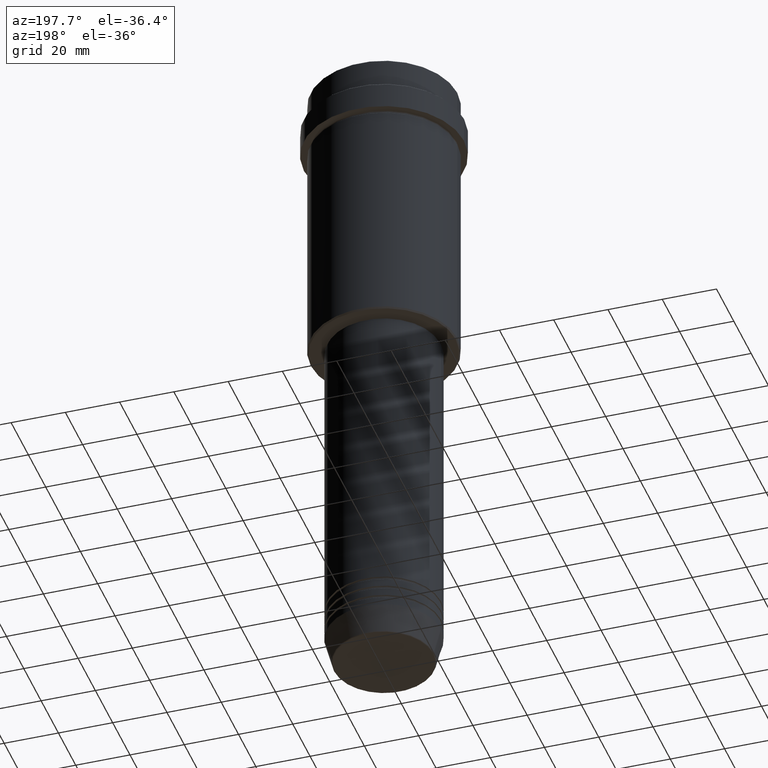
[diagram: clean part render]
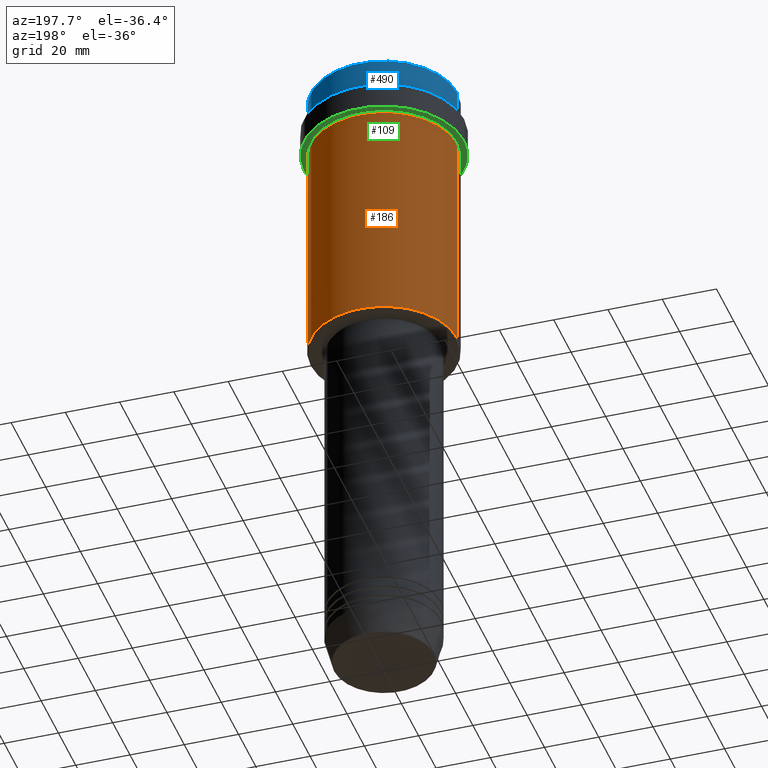
[diagram: same view with three faces highlighted in distinct colors, each labeled with its STEP entity id]
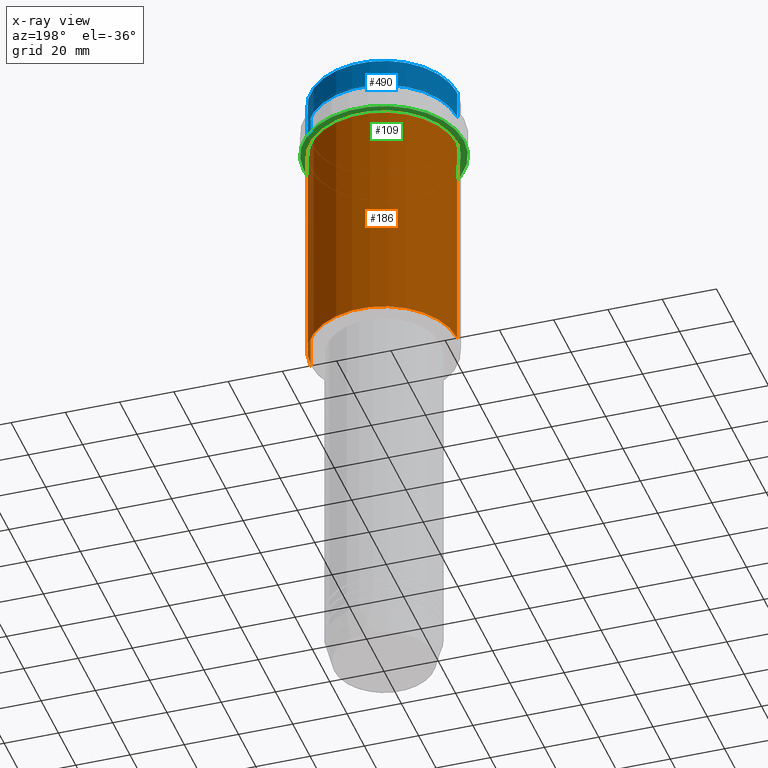
[diagram: x-ray of the same camera — body ghosted, the three highlighted faces saturated]
A machine part, auxiliary view with three faces highlighted in distinct colors.
The next image is the same camera in x-ray (body ghosted, the three faces saturated) — at least one of them is partly hidden behind the body in this view.
Their STEP definitions:

[orange] entity #186 — the highlighted cylindrical surface (partial cylindrical patch) has radius 27 mm, axis along (-0, -0, 1).
#186 = ADVANCED_FACE ( 'NONE', ( #1053 ), #939, .T. ) ;
#203 = CARTESIAN_POINT ( 'NONE',  ( 27.00000000000000355, 0.000000000000000000, -107.5000000000000000 ) ) ;
#244 = ORIENTED_EDGE ( 'NONE', *, *, #1113, .F. ) ;
#253 = DIRECTION ( 'NONE',  ( -0.000000000000000000, -0.000000000000000000, 1.000000000000000000 ) ) ;
#278 = DIRECTION ( 'NONE',  ( 1.000000000000000000, 0.000000000000000000, 0.000000000000000000 ) ) ;
#310 = ORIENTED_EDGE ( 'NONE', *, *, #399, .T. ) ;
#335 = VECTOR ( 'NONE', #567, 1000.000000000000000 ) ;
#364 = CARTESIAN_POINT ( 'NONE',  ( 0.000000000000000000, 0.000000000000000000, -23.00000000000001421 ) ) ;
#374 = AXIS2_PLACEMENT_3D ( 'NONE', #1260, #1145, #278 ) ;
#399 = EDGE_CURVE ( 'NONE', #791, #632, #1112, .T. ) ;
#412 = DIRECTION ( 'NONE',  ( -0.000000000000000000, -0.000000000000000000, 1.000000000000000000 ) ) ;
#429 = AXIS2_PLACEMENT_3D ( 'NONE', #364, #253, #789 ) ;
#449 = DIRECTION ( 'NONE',  ( -0.000000000000000000, -0.000000000000000000, 1.000000000000000000 ) ) ;
#567 = DIRECTION ( 'NONE',  ( -0.000000000000000000, -0.000000000000000000, 1.000000000000000000 ) ) ;
#632 = VERTEX_POINT ( 'NONE', #1344 ) ;
#777 = VERTEX_POINT ( 'NONE', #846 ) ;
#784 = AXIS2_PLACEMENT_3D ( 'NONE', #944, #412, #1264 ) ;
#789 = DIRECTION ( 'NONE',  ( 1.000000000000000000, 0.000000000000000000, 0.000000000000000000 ) ) ;
#791 = VERTEX_POINT ( 'NONE', #203 ) ;
#843 = EDGE_LOOP ( 'NONE', ( #310, #1398, #871, #244 ) ) ;
#846 = CARTESIAN_POINT ( 'NONE',  ( 27.00000000000000355, 0.000000000000000000, -23.00000000000001421 ) ) ;
#871 = ORIENTED_EDGE ( 'NONE', *, *, #1354, .F. ) ;
#891 = LINE ( 'NONE', #1412, #951 ) ;
#913 = CARTESIAN_POINT ( 'NONE',  ( 27.00000000000000355, 0.000000000000000000, 0.000000000000000000 ) ) ;
#939 = CYLINDRICAL_SURFACE ( 'NONE', #374, 27.00000000000000355 ) ;
#944 = CARTESIAN_POINT ( 'NONE',  ( 0.000000000000000000, 0.000000000000000000, -107.5000000000000000 ) ) ;
#951 = VECTOR ( 'NONE', #449, 1000.000000000000000 ) ;
#981 = EDGE_CURVE ( 'NONE', #632, #1131, #891, .T. ) ;
#1053 = FACE_OUTER_BOUND ( 'NONE', #843, .T. ) ;
#1112 = CIRCLE ( 'NONE', #784, 27.00000000000000355 ) ;
#1113 = EDGE_CURVE ( 'NONE', #791, #777, #1233, .T. ) ;
#1131 = VERTEX_POINT ( 'NONE', #1284 ) ;
#1145 = DIRECTION ( 'NONE',  ( -0.000000000000000000, -0.000000000000000000, 1.000000000000000000 ) ) ;
#1233 = LINE ( 'NONE', #913, #335 ) ;
#1260 = CARTESIAN_POINT ( 'NONE',  ( 0.000000000000000000, 0.000000000000000000, 0.000000000000000000 ) ) ;
#1264 = DIRECTION ( 'NONE',  ( -1.000000000000000000, 0.000000000000000000, 0.000000000000000000 ) ) ;
#1272 = CIRCLE ( 'NONE', #429, 27.00000000000000355 ) ;
#1284 = CARTESIAN_POINT ( 'NONE',  ( -27.00000000000000355, 3.306546357697854128E-15, -23.00000000000001421 ) ) ;
#1344 = CARTESIAN_POINT ( 'NONE',  ( -27.00000000000000355, 3.306546357697854128E-15, -107.5000000000000000 ) ) ;
#1354 = EDGE_CURVE ( 'NONE', #777, #1131, #1272, .T. ) ;
#1398 = ORIENTED_EDGE ( 'NONE', *, *, #981, .T. ) ;
#1412 = CARTESIAN_POINT ( 'NONE',  ( -27.00000000000000355, 3.306546357697854128E-15, 0.000000000000000000 ) ) ;

[blue] entity #490 — the highlighted cylindrical surface (partial cylindrical patch) has radius 27 mm, axis along (-0, -0, 1).
#2 = CARTESIAN_POINT ( 'NONE',  ( -27.00000000000000355, 3.306546357697854128E-15, -0.5000000000000628386 ) ) ;
#45 = VERTEX_POINT ( 'NONE', #1207 ) ;
#47 = DIRECTION ( 'NONE',  ( -0.000000000000000000, -0.000000000000000000, 1.000000000000000000 ) ) ;
#145 = EDGE_CURVE ( 'NONE', #45, #978, #917, .T. ) ;
#177 = DIRECTION ( 'NONE',  ( 1.000000000000000000, 0.000000000000000000, 0.000000000000000000 ) ) ;
#204 = LINE ( 'NONE', #1073, #1358 ) ;
#232 = ORIENTED_EDGE ( 'NONE', *, *, #367, .T. ) ;
#284 = AXIS2_PLACEMENT_3D ( 'NONE', #986, #436, #1011 ) ;
#367 = EDGE_CURVE ( 'NONE', #1051, #563, #204, .T. ) ;
#379 = CARTESIAN_POINT ( 'NONE',  ( 27.00000000000000355, 0.000000000000000000, 0.000000000000000000 ) ) ;
#436 = DIRECTION ( 'NONE',  ( -0.000000000000000000, -0.000000000000000000, 1.000000000000000000 ) ) ;
#448 = AXIS2_PLACEMENT_3D ( 'NONE', #1015, #492, #1039 ) ;
#457 = CARTESIAN_POINT ( 'NONE',  ( 27.00000000000000355, 0.000000000000000000, -0.5000000000000628386 ) ) ;
#490 = ADVANCED_FACE ( 'NONE', ( #1306 ), #646, .T. ) ;
#492 = DIRECTION ( 'NONE',  ( -0.000000000000000000, -0.000000000000000000, 1.000000000000000000 ) ) ;
#563 = VERTEX_POINT ( 'NONE', #2 ) ;
#620 = DIRECTION ( 'NONE',  ( -0.000000000000000000, -0.000000000000000000, 1.000000000000000000 ) ) ;
#646 = CYLINDRICAL_SURFACE ( 'NONE', #284, 27.00000000000000355 ) ;
#689 = CARTESIAN_POINT ( 'NONE',  ( -27.00000000000000355, 3.306546357697854128E-15, -11.00000000000000178 ) ) ;
#714 = EDGE_LOOP ( 'NONE', ( #919, #232, #983, #1276 ) ) ;
#719 = VECTOR ( 'NONE', #47, 1000.000000000000000 ) ;
#723 = CIRCLE ( 'NONE', #448, 27.00000000000000355 ) ;
#917 = LINE ( 'NONE', #379, #719 ) ;
#919 = ORIENTED_EDGE ( 'NONE', *, *, #1032, .T. ) ;
#978 = VERTEX_POINT ( 'NONE', #457 ) ;
#983 = ORIENTED_EDGE ( 'NONE', *, *, #1252, .T. ) ;
#986 = CARTESIAN_POINT ( 'NONE',  ( 0.000000000000000000, 0.000000000000000000, 0.000000000000000000 ) ) ;
#1011 = DIRECTION ( 'NONE',  ( 1.000000000000000000, 0.000000000000000000, 0.000000000000000000 ) ) ;
#1015 = CARTESIAN_POINT ( 'NONE',  ( 0.000000000000000000, 0.000000000000000000, -11.00000000000000178 ) ) ;
#1032 = EDGE_CURVE ( 'NONE', #45, #1051, #723, .T. ) ;
#1039 = DIRECTION ( 'NONE',  ( 1.000000000000000000, 0.000000000000000000, 0.000000000000000000 ) ) ;
#1051 = VERTEX_POINT ( 'NONE', #689 ) ;
#1073 = CARTESIAN_POINT ( 'NONE',  ( -27.00000000000000355, 3.306546357697854128E-15, 0.000000000000000000 ) ) ;
#1077 = DIRECTION ( 'NONE',  ( 0.000000000000000000, 0.000000000000000000, -1.000000000000000000 ) ) ;
#1115 = AXIS2_PLACEMENT_3D ( 'NONE', #1377, #1077, #177 ) ;
#1141 = CIRCLE ( 'NONE', #1115, 27.00000000000000355 ) ;
#1207 = CARTESIAN_POINT ( 'NONE',  ( 27.00000000000000355, 0.000000000000000000, -11.00000000000000178 ) ) ;
#1252 = EDGE_CURVE ( 'NONE', #563, #978, #1141, .T. ) ;
#1276 = ORIENTED_EDGE ( 'NONE', *, *, #145, .F. ) ;
#1306 = FACE_OUTER_BOUND ( 'NONE', #714, .T. ) ;
#1358 = VECTOR ( 'NONE', #620, 1000.000000000000000 ) ;
#1377 = CARTESIAN_POINT ( 'NONE',  ( 0.000000000000000000, 0.000000000000000000, -0.5000000000000628386 ) ) ;

[green] entity #109 — the highlighted planar face has unit normal (0, 0, -1).
#18 = FACE_OUTER_BOUND ( 'NONE', #423, .T. ) ;
#59 = CIRCLE ( 'NONE', #741, 29.49999999999999645 ) ;
#102 = CIRCLE ( 'NONE', #926, 26.99999999999999645 ) ;
#109 = ADVANCED_FACE ( 'NONE', ( #1106, #18 ), #1337, .T. ) ;
#115 = DIRECTION ( 'NONE',  ( -0.000000000000000000, -0.000000000000000000, 1.000000000000000000 ) ) ;
#127 = CARTESIAN_POINT ( 'NONE',  ( 0.000000000000000000, 29.49999999999999645, -22.00000000000000711 ) ) ;
#130 = CARTESIAN_POINT ( 'NONE',  ( 26.99999999999999645, 3.306546357697853339E-15, -22.00000000000000711 ) ) ;
#159 = CARTESIAN_POINT ( 'NONE',  ( -29.49999999999999645, 3.612708057484690815E-15, -22.00000000000000711 ) ) ;
#268 = ORIENTED_EDGE ( 'NONE', *, *, #547, .F. ) ;
#273 = VERTEX_POINT ( 'NONE', #159 ) ;
#322 = CARTESIAN_POINT ( 'NONE',  ( 29.49999999999999645, 0.000000000000000000, -22.00000000000000711 ) ) ;
#324 = CARTESIAN_POINT ( 'NONE',  ( 0.000000000000000000, 0.000000000000000000, -22.00000000000000711 ) ) ;
#341 = CARTESIAN_POINT ( 'NONE',  ( 0.000000000000000000, 0.000000000000000000, -22.00000000000000711 ) ) ;
#400 = ORIENTED_EDGE ( 'NONE', *, *, #727, .T. ) ;
#423 = EDGE_LOOP ( 'NONE', ( #268, #604 ) ) ;
#535 = AXIS2_PLACEMENT_3D ( 'NONE', #692, #585, #715 ) ;
#547 = EDGE_CURVE ( 'NONE', #1020, #273, #59, .T. ) ;
#585 = DIRECTION ( 'NONE',  ( -0.000000000000000000, -0.000000000000000000, 1.000000000000000000 ) ) ;
#596 = CARTESIAN_POINT ( 'NONE',  ( 0.000000000000000000, 0.000000000000000000, -22.00000000000000711 ) ) ;
#604 = ORIENTED_EDGE ( 'NONE', *, *, #910, .F. ) ;
#661 = CARTESIAN_POINT ( 'NONE',  ( -26.99999999999999645, 0.000000000000000000, -22.00000000000000711 ) ) ;
#662 = EDGE_CURVE ( 'NONE', #1012, #1076, #1066, .T. ) ;
#692 = CARTESIAN_POINT ( 'NONE',  ( 0.000000000000000000, 0.000000000000000000, -22.00000000000000711 ) ) ;
#703 = DIRECTION ( 'NONE',  ( -0.000000000000000000, -0.000000000000000000, 1.000000000000000000 ) ) ;
#715 = DIRECTION ( 'NONE',  ( -1.000000000000000000, 0.000000000000000000, 0.000000000000000000 ) ) ;
#727 = EDGE_CURVE ( 'NONE', #1076, #1012, #102, .T. ) ;
#741 = AXIS2_PLACEMENT_3D ( 'NONE', #324, #875, #868 ) ;
#811 = CIRCLE ( 'NONE', #1292, 29.49999999999999645 ) ;
#868 = DIRECTION ( 'NONE',  ( 1.000000000000000000, 0.000000000000000000, 0.000000000000000000 ) ) ;
#870 = DIRECTION ( 'NONE',  ( 0.000000000000000000, 0.000000000000000000, -1.000000000000000000 ) ) ;
#875 = DIRECTION ( 'NONE',  ( -0.000000000000000000, -0.000000000000000000, 1.000000000000000000 ) ) ;
#886 = DIRECTION ( 'NONE',  ( -1.000000000000000000, 0.000000000000000000, -0.000000000000000000 ) ) ;
#910 = EDGE_CURVE ( 'NONE', #273, #1020, #811, .T. ) ;
#926 = AXIS2_PLACEMENT_3D ( 'NONE', #596, #703, #1367 ) ;
#980 = DIRECTION ( 'NONE',  ( 1.000000000000000000, 0.000000000000000000, 0.000000000000000000 ) ) ;
#1006 = ORIENTED_EDGE ( 'NONE', *, *, #662, .T. ) ;
#1012 = VERTEX_POINT ( 'NONE', #661 ) ;
#1020 = VERTEX_POINT ( 'NONE', #322 ) ;
#1066 = CIRCLE ( 'NONE', #535, 26.99999999999999645 ) ;
#1076 = VERTEX_POINT ( 'NONE', #130 ) ;
#1106 = FACE_BOUND ( 'NONE', #1161, .T. ) ;
#1161 = EDGE_LOOP ( 'NONE', ( #1006, #400 ) ) ;
#1292 = AXIS2_PLACEMENT_3D ( 'NONE', #341, #115, #980 ) ;
#1337 = PLANE ( 'NONE',  #1406 ) ;
#1367 = DIRECTION ( 'NONE',  ( -1.000000000000000000, 0.000000000000000000, 0.000000000000000000 ) ) ;
#1406 = AXIS2_PLACEMENT_3D ( 'NONE', #127, #870, #886 ) ;